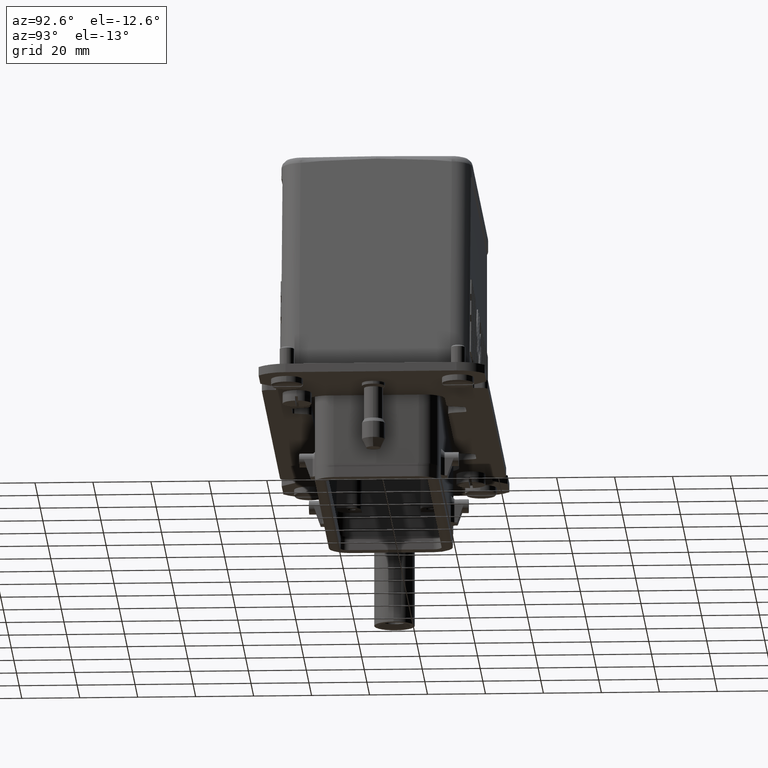
[diagram: clean part render]
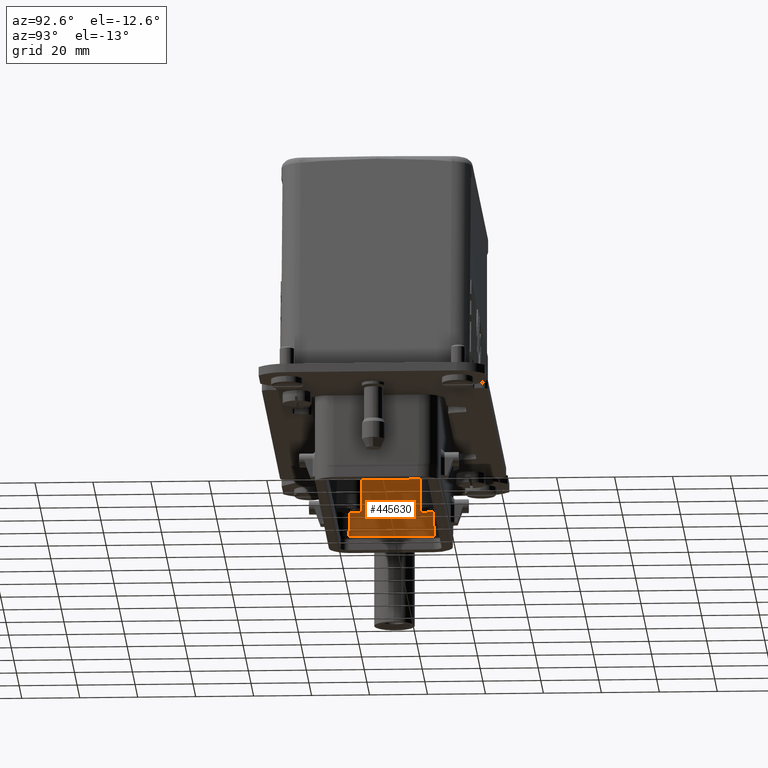
[diagram: same view with one face highlighted and labeled with its STEP entity id]
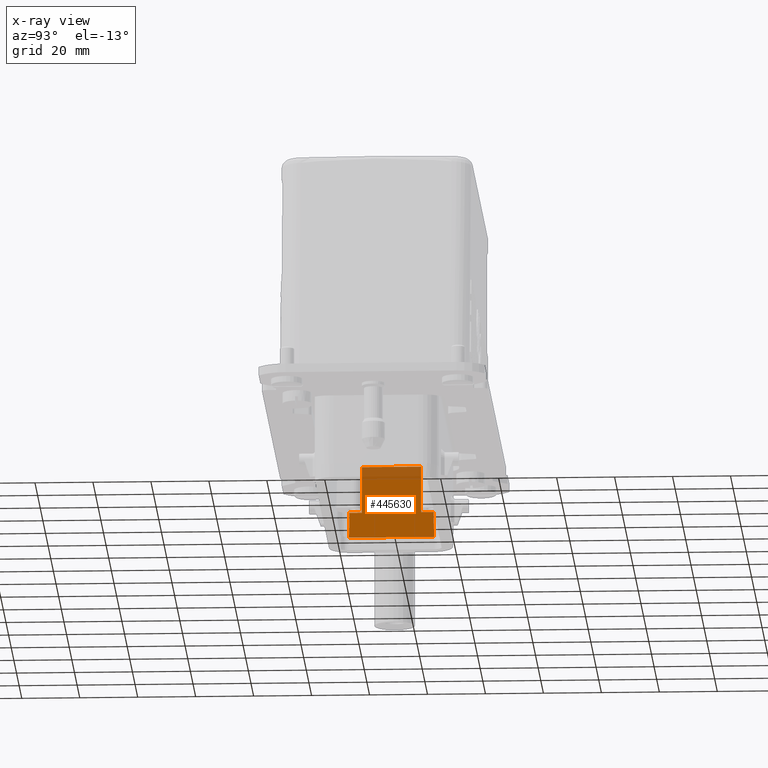
[diagram: x-ray of the same camera — body ghosted, the highlighted face saturated]
A machine part, auxiliary view. The second image highlights one B-rep face of the part: STEP entity #445630.
The next image is the same camera in x-ray: the body ghosted, the highlighted face saturated — about 15% of this face is hidden behind the body in this view.
In plain terms, the highlighted planar face has unit normal (-0.9998, -0, 0.0209).
Its self-contained STEP definition (entity closure, byte-faithful):
#215950=CARTESIAN_POINT('',(31.9359631829766,19.780754524589,
-61.3407047876701));
#215960=VERTEX_POINT('',#215950);
#216010=CARTESIAN_POINT('',(0.,19.780754524589,-61.3407047876702));
#216020=DIRECTION('',(1.,-1.38080941846033E-30,-8.55083904331821E-16));
#216030=VECTOR('',#216020,1.);
#216040=LINE('',#216010,#216030);
#216050=CARTESIAN_POINT('',(61.3094538786973,19.780754524589,
-61.3407047876701));
#216060=VERTEX_POINT('',#216050);
#216070=EDGE_CURVE('',#215960,#216060,#216040,.T.);
#224700=CARTESIAN_POINT('',(56.8243132424394,0.,-61.7550525278403));
#224710=DIRECTION('',(-7.97972798949331E-17,0.999780683474846,
0.0209424198833568));
#224720=VECTOR('',#224710,1.);
#224730=LINE('',#224700,#224720);
#224740=CARTESIAN_POINT('',(56.8243132424394,28.5366080000222,
-61.1572958031294));
#224750=VERTEX_POINT('',#224740);
#224760=CARTESIAN_POINT('',(56.8243132424394,44.5366080000253,
-60.8221435805748));
#224770=VERTEX_POINT('',#224760);
#224780=EDGE_CURVE('',#224750,#224770,#224730,.T.);
#225640=CARTESIAN_POINT('',(0.,44.5366080000222,-60.822143580575));
#225650=DIRECTION('',(1.,-2.77555756156273E-17,3.73559540482591E-15));
#225660=VECTOR('',#225650,1.);
#225670=LINE('',#225640,#225660);
#306750=CARTESIAN_POINT('',(31.932691503205,19.6245661635323,
-61.3439764674418));
#306760=DIRECTION('',(-0.0209378288783664,-0.99956151118564,
-0.0209378288783662));
#306770=VECTOR('',#306760,1.);
#306780=LINE('',#306750,#306770);
#306790=CARTESIAN_POINT('',(32.1193721675174,28.5366080000222,
-61.1572958031294));
#306800=VERTEX_POINT('',#306790);
#306810=EDGE_CURVE('',#306800,#215960,#306780,.T.);
#307070=CARTESIAN_POINT('',(36.4243132424393,0.,-61.7550525278403));
#307080=DIRECTION('',(7.97972798949331E-17,-0.999780683474846,
-0.0209424198833568));
#307090=VECTOR('',#307080,1.);
#307100=LINE('',#307070,#307090);
#307110=CARTESIAN_POINT('',(36.4243132424393,44.5366080000222,
-60.8221435805748));
#307120=VERTEX_POINT('',#307110);
#307130=CARTESIAN_POINT('',(36.4243132424393,28.5366080000223,
-61.1572958031293));
#307140=VERTEX_POINT('',#307130);
#307150=EDGE_CURVE('',#307120,#307140,#307100,.T.);
#310590=CARTESIAN_POINT('',(26.9531170663858,28.5366080000222,
-61.1572958031293));
#310600=DIRECTION('',(-1.,-2.83496887813801E-31,8.55083904331822E-16));
#310610=VECTOR('',#310600,1.);
#310620=LINE('',#310590,#310610);
#310630=EDGE_CURVE('',#307140,#306800,#310620,.T.);
#444310=CARTESIAN_POINT('',(26.9531170663858,28.5366080000222,
-61.1572958031294));
#444320=DIRECTION('',(-1.,3.01985815279919E-31,8.55083904331822E-16));
#444330=VECTOR('',#444320,1.);
#444340=LINE('',#444310,#444330);
#444350=CARTESIAN_POINT('',(61.1260448941564,28.5366080000222,
-61.1572958031294));
#444360=VERTEX_POINT('',#444350);
#444370=EDGE_CURVE('',#444360,#224750,#444340,.T.);
#445200=EDGE_CURVE('',#307120,#224770,#225670,.T.);
#445430=CARTESIAN_POINT('',(28.034333061659,19.5385818487486,
-61.3457775820796));
#445440=DIRECTION('',(-8.54896370301208E-16,0.0209424198833568,
-0.999780683474846));
#445450=DIRECTION('',(-1.,4.93683471622625E-32,8.55083904331821E-16));
#445460=AXIS2_PLACEMENT_3D('',#445430,#445440,#445450);
#445470=PLANE('',#445460);
#445480=ORIENTED_EDGE('',*,*,#445200,.F.);
#445490=ORIENTED_EDGE('',*,*,#224780,.T.);
#445500=ORIENTED_EDGE('',*,*,#444370,.T.);
#445510=CARTESIAN_POINT('',(61.3127255584688,19.6245661635323,
-61.3439764674418));
#445520=DIRECTION('',(0.0209378288783664,-0.99956151118564,
-0.0209378288783662));
#445530=VECTOR('',#445520,1.);
#445540=LINE('',#445510,#445530);
#445550=EDGE_CURVE('',#444360,#216060,#445540,.T.);
#445560=ORIENTED_EDGE('',*,*,#445550,.F.);
#445570=ORIENTED_EDGE('',*,*,#216070,.T.);
#445580=ORIENTED_EDGE('',*,*,#306810,.T.);
#445590=ORIENTED_EDGE('',*,*,#310630,.T.);
#445600=ORIENTED_EDGE('',*,*,#307150,.T.);
#445610=EDGE_LOOP('',(#445600,#445590,#445580,#445570,#445560,#445500,
#445490,#445480));
#445620=FACE_OUTER_BOUND('',#445610,.T.);
#445630=ADVANCED_FACE('',(#445620),#445470,.F.);